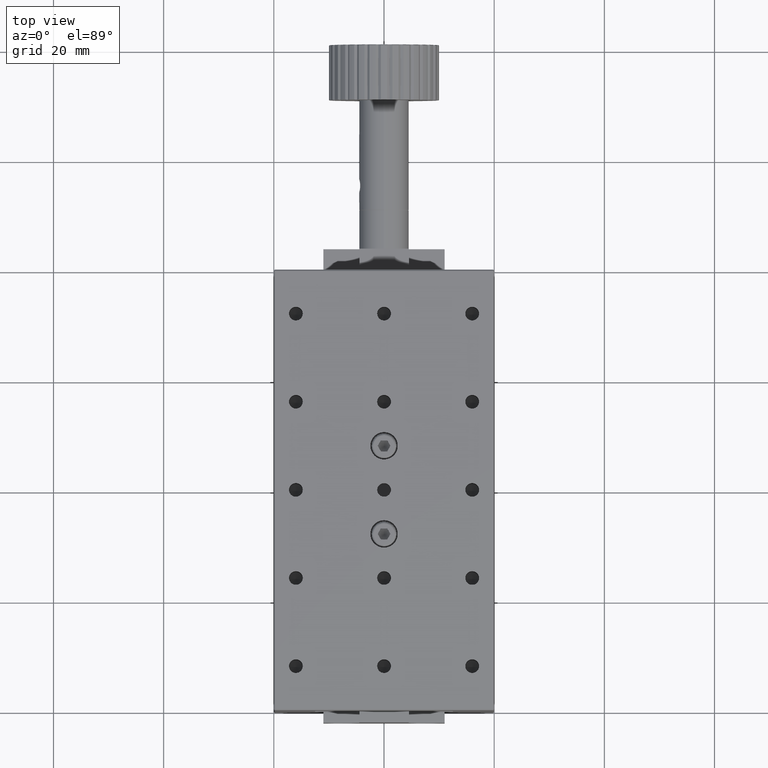
[diagram: clean part render]
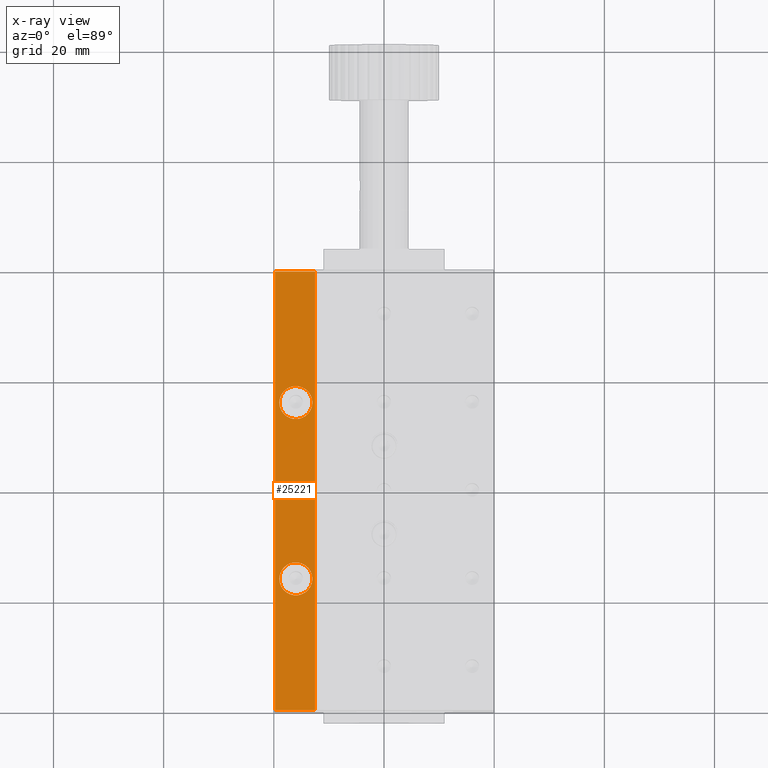
[diagram: x-ray — body ghosted, one internal face saturated and labeled with its STEP entity id]
A machine part, top view, then the same camera in x-ray: the body is ghosted and one INTERNAL B-rep face — a face not visible from any outside direction — is saturated and labeled: STEP entity #25221.
In plain terms, the highlighted planar face has unit normal (0, 0, -1).
Its self-contained STEP definition (entity closure, byte-faithful):
#516 = CARTESIAN_POINT ( 'NONE',  ( -16.00000000000000000, -16.00000000000000000, 21.50000000000000000 ) ) ;
#625 = ORIENTED_EDGE ( 'NONE', *, *, #15870, .F. ) ;
#1154 = FACE_OUTER_BOUND ( 'NONE', #19757, .T. ) ;
#1380 = EDGE_CURVE ( 'NONE', #15607, #8463, #6659, .T. ) ;
#2271 = DIRECTION ( 'NONE',  ( 0.0000000000000000000, -0.0000000000000000000, 1.000000000000000000 ) ) ;
#2274 = ORIENTED_EDGE ( 'NONE', *, *, #24883, .T. ) ;
#2318 = CARTESIAN_POINT ( 'NONE',  ( -19.80000000000000100, 0.0000000000000000000, 21.50000000000000000 ) ) ;
#2652 = DIRECTION ( 'NONE',  ( 1.000000000000000000, 0.0000000000000000000, 0.0000000000000000000 ) ) ;
#2704 = EDGE_CURVE ( 'NONE', #8463, #15607, #15741, .T. ) ;
#2738 = VECTOR ( 'NONE', #6354, 1000.000000000000000 ) ;
#2739 = CARTESIAN_POINT ( 'NONE',  ( -16.15000000000000200, -39.79999999999999700, 21.50000000000000000 ) ) ;
#3084 = VERTEX_POINT ( 'NONE', #20752 ) ;
#3446 = DIRECTION ( 'NONE',  ( 1.000000000000000000, 0.0000000000000000000, 0.0000000000000000000 ) ) ;
#3471 = DIRECTION ( 'NONE',  ( 0.0000000000000000000, -0.0000000000000000000, 1.000000000000000000 ) ) ;
#3507 = CARTESIAN_POINT ( 'NONE',  ( -16.00000000000000000, 16.00000000000000000, 21.50000000000000000 ) ) ;
#4440 = DIRECTION ( 'NONE',  ( 0.0000000000000000000, -1.000000000000000000, 0.0000000000000000000 ) ) ;
#5289 = CARTESIAN_POINT ( 'NONE',  ( -19.00000000000000000, -16.00000000000000000, 21.50000000000000000 ) ) ;
#5431 = FACE_BOUND ( 'NONE', #6768, .T. ) ;
#5606 = PLANE ( 'NONE',  #16072 ) ;
#5895 = EDGE_CURVE ( 'NONE', #9438, #22384, #21717, .T. ) ;
#5976 = CARTESIAN_POINT ( 'NONE',  ( -19.80000000003720500, -39.79999999997518500, 21.49999999997520200 ) ) ;
#6117 = LINE ( 'NONE', #2739, #27230 ) ;
#6234 = EDGE_LOOP ( 'NONE', ( #7218, #23215 ) ) ;
#6354 = DIRECTION ( 'NONE',  ( 1.000000000000000000, -0.0000000000000000000, -0.0000000000000000000 ) ) ;
#6659 = CIRCLE ( 'NONE', #18119, 2.999999999999999100 ) ;
#6692 = ORIENTED_EDGE ( 'NONE', *, *, #1380, .F. ) ;
#6768 = EDGE_LOOP ( 'NONE', ( #24586, #6692 ) ) ;
#7218 = ORIENTED_EDGE ( 'NONE', *, *, #24169, .F. ) ;
#7768 = ORIENTED_EDGE ( 'NONE', *, *, #5895, .T. ) ;
#8463 = VERTEX_POINT ( 'NONE', #17325 ) ;
#8739 = VECTOR ( 'NONE', #4440, 1000.000000000000000 ) ;
#8967 = LINE ( 'NONE', #25277, #2738 ) ;
#9438 = VERTEX_POINT ( 'NONE', #11209 ) ;
#9511 = ORIENTED_EDGE ( 'NONE', *, *, #23592, .F. ) ;
#10207 = AXIS2_PLACEMENT_3D ( 'NONE', #516, #15273, #2652 ) ;
#11034 = FACE_BOUND ( 'NONE', #6234, .T. ) ;
#11200 = DIRECTION ( 'NONE',  ( -1.000000000000000000, 0.0000000000000000000, 0.0000000000000000000 ) ) ;
#11209 = CARTESIAN_POINT ( 'NONE',  ( -12.50000000000000000, -39.80000000000000400, 21.50000000000000400 ) ) ;
#11979 = DIRECTION ( 'NONE',  ( -1.000000000000000000, 0.0000000000000000000, 0.0000000000000000000 ) ) ;
#12513 = DIRECTION ( 'NONE',  ( 0.0000000000000000000, 1.000000000000000000, 0.0000000000000000000 ) ) ;
#12841 = VERTEX_POINT ( 'NONE', #14345 ) ;
#13029 = EDGE_CURVE ( 'NONE', #24363, #12841, #18671, .T. ) ;
#14345 = CARTESIAN_POINT ( 'NONE',  ( -13.00000000000000200, -16.00000000000000000, 21.50000000000000000 ) ) ;
#14906 = CARTESIAN_POINT ( 'NONE',  ( -16.00000000000000000, -16.00000000000000000, 21.50000000000000000 ) ) ;
#15273 = DIRECTION ( 'NONE',  ( 0.0000000000000000000, -0.0000000000000000000, 1.000000000000000000 ) ) ;
#15544 = AXIS2_PLACEMENT_3D ( 'NONE', #3507, #3471, #3446 ) ;
#15607 = VERTEX_POINT ( 'NONE', #18656 ) ;
#15741 = CIRCLE ( 'NONE', #15544, 2.999999999999999100 ) ;
#15870 = EDGE_CURVE ( 'NONE', #9438, #21227, #6117, .T. ) ;
#16072 = AXIS2_PLACEMENT_3D ( 'NONE', #20391, #24644, #11979 ) ;
#16293 = CARTESIAN_POINT ( 'NONE',  ( -12.50000000000000000, 39.79999999999999000, 21.50000000000000000 ) ) ;
#16588 = CIRCLE ( 'NONE', #10207, 2.999999999999999100 ) ;
#17042 = DIRECTION ( 'NONE',  ( 1.000000000000000000, 0.0000000000000000000, 0.0000000000000000000 ) ) ;
#17325 = CARTESIAN_POINT ( 'NONE',  ( -13.00000000000000200, 16.00000000000000000, 21.50000000000000000 ) ) ;
#18119 = AXIS2_PLACEMENT_3D ( 'NONE', #22866, #20859, #20831 ) ;
#18656 = CARTESIAN_POINT ( 'NONE',  ( -19.00000000000000000, 16.00000000000000000, 21.50000000000000000 ) ) ;
#18671 = CIRCLE ( 'NONE', #21499, 2.999999999999999100 ) ;
#19757 = EDGE_LOOP ( 'NONE', ( #7768, #9511, #2274, #625 ) ) ;
#20391 = CARTESIAN_POINT ( 'NONE',  ( -12.50000000000000000, -39.79999999999999700, 21.50000000000000000 ) ) ;
#20752 = CARTESIAN_POINT ( 'NONE',  ( -19.80000000003720500, 39.79999999997519200, 21.49999999997519900 ) ) ;
#20831 = DIRECTION ( 'NONE',  ( 1.000000000000000000, 0.0000000000000000000, 0.0000000000000000000 ) ) ;
#20859 = DIRECTION ( 'NONE',  ( 0.0000000000000000000, -0.0000000000000000000, 1.000000000000000000 ) ) ;
#21227 = VERTEX_POINT ( 'NONE', #5976 ) ;
#21499 = AXIS2_PLACEMENT_3D ( 'NONE', #14906, #2271, #17042 ) ;
#21717 = LINE ( 'NONE', #25821, #26625 ) ;
#22384 = VERTEX_POINT ( 'NONE', #16293 ) ;
#22866 = CARTESIAN_POINT ( 'NONE',  ( -16.00000000000000000, 16.00000000000000000, 21.50000000000000000 ) ) ;
#23215 = ORIENTED_EDGE ( 'NONE', *, *, #13029, .F. ) ;
#23592 = EDGE_CURVE ( 'NONE', #3084, #22384, #8967, .T. ) ;
#24169 = EDGE_CURVE ( 'NONE', #12841, #24363, #16588, .T. ) ;
#24363 = VERTEX_POINT ( 'NONE', #5289 ) ;
#24586 = ORIENTED_EDGE ( 'NONE', *, *, #2704, .F. ) ;
#24644 = DIRECTION ( 'NONE',  ( 0.0000000000000000000, 0.0000000000000000000, -1.000000000000000000 ) ) ;
#24883 = EDGE_CURVE ( 'NONE', #3084, #21227, #25616, .T. ) ;
#25221 = ADVANCED_FACE ( 'NONE', ( #11034, #5431, #1154 ), #5606, .F. ) ;
#25277 = CARTESIAN_POINT ( 'NONE',  ( -16.15000000000000200, 39.79999999999999700, 21.50000000000000000 ) ) ;
#25616 = LINE ( 'NONE', #2318, #8739 ) ;
#25821 = CARTESIAN_POINT ( 'NONE',  ( -12.50000000000000000, 0.0000000000000000000, 21.50000000000000000 ) ) ;
#26625 = VECTOR ( 'NONE', #12513, 1000.000000000000000 ) ;
#27230 = VECTOR ( 'NONE', #11200, 1000.000000000000000 ) ;